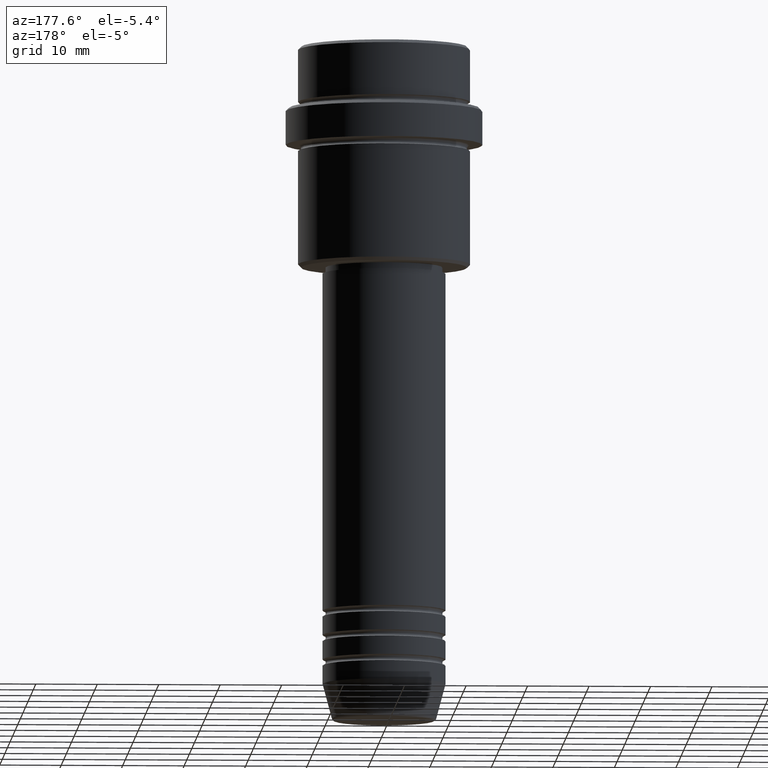
[diagram: clean part render]
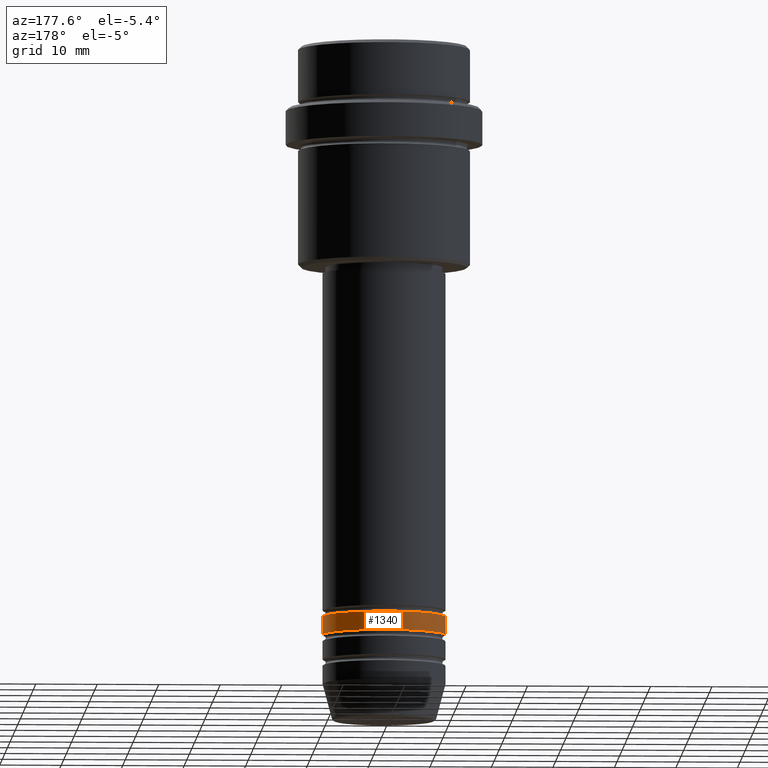
[diagram: same view with one face highlighted and labeled with its STEP entity id]
A machine part, auxiliary view. The second image highlights one B-rep face of the part: STEP entity #1340.
In plain terms, the highlighted cylindrical surface (partial cylindrical patch) has radius 10 mm, axis along (-0, -0, 1).
Its self-contained STEP definition (entity closure, byte-faithful):
#4 = CARTESIAN_POINT ( 'NONE',  ( 0.000000000000000000, 0.000000000000000000, -92.99999999999988631 ) ) ;
#85 = DIRECTION ( 'NONE',  ( -0.000000000000000000, -0.000000000000000000, 1.000000000000000000 ) ) ;
#130 = CIRCLE ( 'NONE', #1410, 10.00000000000000000 ) ;
#162 = DIRECTION ( 'NONE',  ( 1.000000000000000000, 0.000000000000000000, 0.000000000000000000 ) ) ;
#180 = ORIENTED_EDGE ( 'NONE', *, *, #1243, .T. ) ;
#202 = AXIS2_PLACEMENT_3D ( 'NONE', #1314, #344, #1102 ) ;
#212 = CARTESIAN_POINT ( 'NONE',  ( 10.00000000000000000, 0.000000000000000000, -95.99999999999988631 ) ) ;
#216 = FACE_OUTER_BOUND ( 'NONE', #534, .T. ) ;
#229 = CARTESIAN_POINT ( 'NONE',  ( -10.00000000000000000, 1.224646799147353256E-15, -92.99999999999988631 ) ) ;
#277 = CARTESIAN_POINT ( 'NONE',  ( 0.000000000000000000, 0.000000000000000000, -95.99999999999988631 ) ) ;
#290 = VERTEX_POINT ( 'NONE', #212 ) ;
#325 = AXIS2_PLACEMENT_3D ( 'NONE', #4, #885, #1201 ) ;
#344 = DIRECTION ( 'NONE',  ( -0.000000000000000000, -0.000000000000000000, 1.000000000000000000 ) ) ;
#434 = VECTOR ( 'NONE', #85, 1000.000000000000000 ) ;
#534 = EDGE_LOOP ( 'NONE', ( #180, #1002, #724, #644 ) ) ;
#610 = DIRECTION ( 'NONE',  ( -0.000000000000000000, -0.000000000000000000, 1.000000000000000000 ) ) ;
#628 = LINE ( 'NONE', #858, #1005 ) ;
#644 = ORIENTED_EDGE ( 'NONE', *, *, #979, .F. ) ;
#668 = CYLINDRICAL_SURFACE ( 'NONE', #202, 10.00000000000000000 ) ;
#680 = CARTESIAN_POINT ( 'NONE',  ( 10.00000000000000000, 0.000000000000000000, -92.99999999999988631 ) ) ;
#708 = CIRCLE ( 'NONE', #325, 10.00000000000000000 ) ;
#714 = DIRECTION ( 'NONE',  ( -0.000000000000000000, -0.000000000000000000, 1.000000000000000000 ) ) ;
#724 = ORIENTED_EDGE ( 'NONE', *, *, #1328, .F. ) ;
#851 = CARTESIAN_POINT ( 'NONE',  ( -10.00000000000000000, 1.224646799147353256E-15, 0.000000000000000000 ) ) ;
#858 = CARTESIAN_POINT ( 'NONE',  ( 10.00000000000000000, 0.000000000000000000, 0.000000000000000000 ) ) ;
#885 = DIRECTION ( 'NONE',  ( -0.000000000000000000, -0.000000000000000000, 1.000000000000000000 ) ) ;
#901 = VERTEX_POINT ( 'NONE', #680 ) ;
#955 = EDGE_CURVE ( 'NONE', #1321, #1296, #1073, .T. ) ;
#979 = EDGE_CURVE ( 'NONE', #290, #901, #628, .T. ) ;
#1002 = ORIENTED_EDGE ( 'NONE', *, *, #955, .T. ) ;
#1005 = VECTOR ( 'NONE', #610, 1000.000000000000000 ) ;
#1073 = LINE ( 'NONE', #851, #434 ) ;
#1102 = DIRECTION ( 'NONE',  ( 1.000000000000000000, 0.000000000000000000, 0.000000000000000000 ) ) ;
#1201 = DIRECTION ( 'NONE',  ( 1.000000000000000000, 0.000000000000000000, 0.000000000000000000 ) ) ;
#1243 = EDGE_CURVE ( 'NONE', #290, #1321, #130, .T. ) ;
#1296 = VERTEX_POINT ( 'NONE', #229 ) ;
#1298 = CARTESIAN_POINT ( 'NONE',  ( -10.00000000000000000, 1.224646799147353256E-15, -95.99999999999988631 ) ) ;
#1314 = CARTESIAN_POINT ( 'NONE',  ( 0.000000000000000000, 0.000000000000000000, 0.000000000000000000 ) ) ;
#1321 = VERTEX_POINT ( 'NONE', #1298 ) ;
#1328 = EDGE_CURVE ( 'NONE', #901, #1296, #708, .T. ) ;
#1340 = ADVANCED_FACE ( 'NONE', ( #216 ), #668, .T. ) ;
#1410 = AXIS2_PLACEMENT_3D ( 'NONE', #277, #714, #162 ) ;